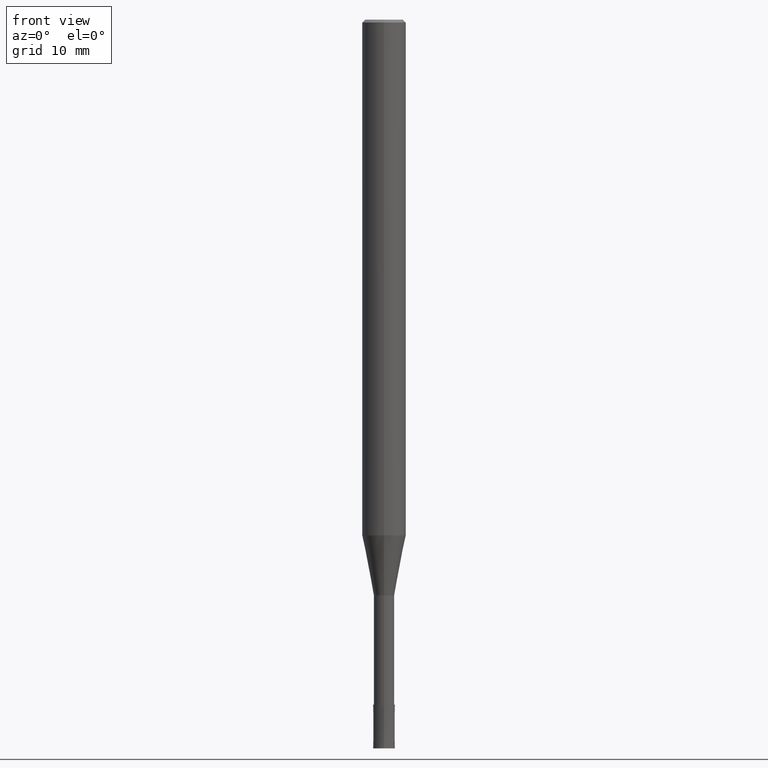
[diagram: clean part render]
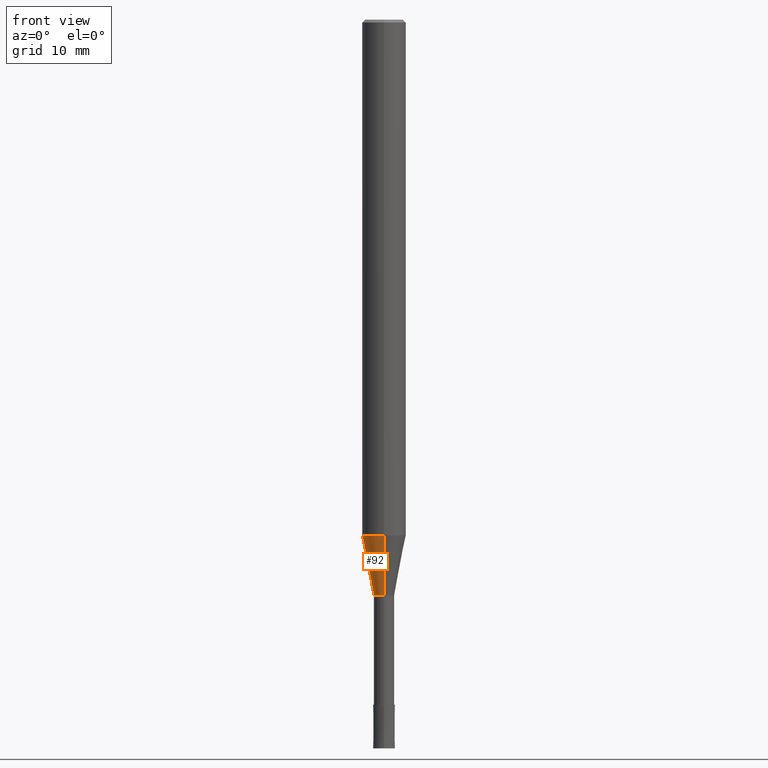
[diagram: same view with one face highlighted and labeled with its STEP entity id]
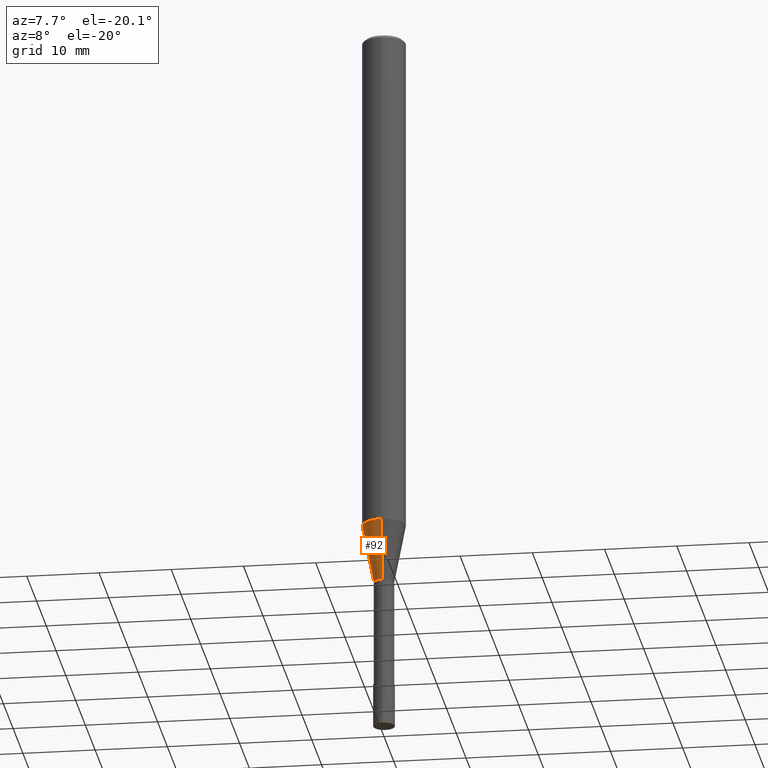
[diagram: same view with one face highlighted and labeled with its STEP entity id]
A machine part, front view. The second image highlights one B-rep face of the part: STEP entity #92.
A second angle (auxiliary view) of the same face is appended — the face is thin or edge-on in the first view.
In plain terms, the highlighted conical surface has half-angle 11 deg.
Its self-contained STEP definition (entity closure, byte-faithful):
#92=ADVANCED_FACE('',(#229),#230,.T.);
#96=VERTEX_POINT('',#234);
#112=VERTEX_POINT('',#254);
#124=EDGE_CURVE('',#112,#204,#267,.T.);
#140=VERTEX_POINT('',#286);
#152=EDGE_CURVE('',#140,#96,#299,.T.);
#166=EDGE_CURVE('',#204,#96,#314,.T.);
#178=EDGE_CURVE('',#140,#112,#327,.T.);
#204=VERTEX_POINT('',#357);
#229=FACE_OUTER_BOUND('',#374,.T.);
#230=CONICAL_SURFACE('',#375,2.19995,0.191992735564386);
#234=CARTESIAN_POINT('',(0.0,1.39995,-79.0));
#254=CARTESIAN_POINT('',(3.67375783114944E-016,-2.99995,-70.769));
#267=CIRCLE('',#419,2.99995);
#286=CARTESIAN_POINT('',(1.71438766503364E-016,-1.39995,-79.0));
#299=CIRCLE('',#460,1.39995);
#314=LINE('',#477,#478);
#327=LINE('',#495,#496);
#357=CARTESIAN_POINT('',(0.0,2.99995,-70.769));
#374=EDGE_LOOP('',(#543,#544,#545,#546));
#375=AXIS2_PLACEMENT_3D('',#547,#548,#549);
#419=AXIS2_PLACEMENT_3D('',#594,#595,#596);
#460=AXIS2_PLACEMENT_3D('',#641,#642,#643);
#477=CARTESIAN_POINT('',(-2.69407274809154E-016,2.19995,-74.8845));
#478=VECTOR('',#659,1.0);
#495=CARTESIAN_POINT('',(2.69407274809154E-016,-2.19995,-74.8845));
#496=VECTOR('',#670,1.0);
#543=ORIENTED_EDGE('',*,*,#166,.T.);
#544=ORIENTED_EDGE('',*,*,#152,.F.);
#545=ORIENTED_EDGE('',*,*,#178,.T.);
#546=ORIENTED_EDGE('',*,*,#124,.T.);
#547=CARTESIAN_POINT('',(0.0,0.0,-74.8845));
#548=DIRECTION('',(-0.0,-0.0,1.0));
#549=DIRECTION('',(0.0,1.0,0.0));
#594=CARTESIAN_POINT('',(0.0,0.0,-70.769));
#595=DIRECTION('',(0.0,0.0,-1.0));
#596=DIRECTION('',(0.0,1.0,0.0));
#641=CARTESIAN_POINT('',(0.0,0.0,-79.0));
#642=DIRECTION('',(0.0,0.0,-1.0));
#643=DIRECTION('',(0.0,1.0,0.0));
#659=DIRECTION('',(2.33673743245985E-017,-0.190815393466331,-0.981625939763355));
#670=DIRECTION('',(2.33673743245985E-017,-0.190815393466331,0.981625939763355));